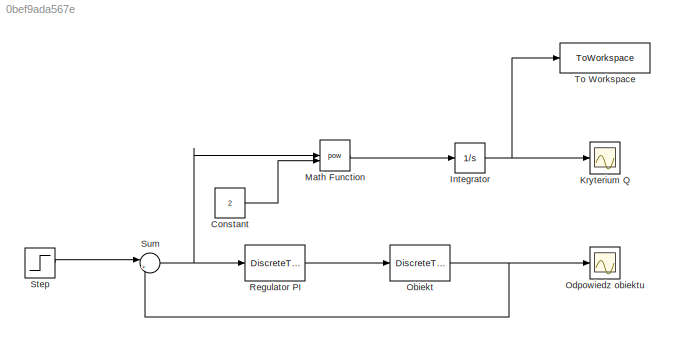
MODEL slx_0bef9ada567e
KIND model
CONFIG AbsTol = auto
CONFIG EnableMultiTasking = off
CONFIG FixedStep = 0.001
CONFIG MaxStep = auto
CONFIG MinStep = auto
CONFIG RelTol = 1e-3
CONFIG SampleTimeConstraint = Unconstrained
CONFIG SolverName = FixedStepAuto
CONFIG StartTime = 0.0
CONFIG StopTime = 200
BLOCK [Constant] Constant
  Value = 2
BLOCK [Integrator] Integrator
BLOCK [Scope] Kryterium Q
  Floating = off
  NumInputPorts = 1
  ScopeSpecificationString = Simulink.scopes.TimeScopeBlockCfg('CurrentConfiguration', extmgr.ConfigurationSet(extmgr.Configuration('Core','General UI',true),extmgr.Configuration('Core','Source UI',true),extmgr.Configuration('Sources','WiredSimulink',true,'DataLoggingVariableName','ScopeData1'),extmgr.Configuration('Visuals','Time Domain',true,'SerializedDisplays',{struct('MinYLimReal','-0.53527','MaxYLimReal','4.81745','YLab...<+1698ch>
BLOCK [Math] Math Function
  Operator = pow
BLOCK [DiscreteTransferFcn] Obiekt
  Denominator = disc_model.Denominator{1,1}
  InputPortMap = u0
  Numerator = disc_model.Numerator{1,1}
  SampleTime = Ts
BLOCK [Scope] Odpowiedz obiektu
  Floating = off
  NumInputPorts = 1
  ScopeSpecificationString = Simulink.scopes.TimeScopeBlockCfg('CurrentConfiguration', extmgr.ConfigurationSet(extmgr.Configuration('Core','General UI',true),extmgr.Configuration('Core','Source UI',true),extmgr.Configuration('Sources','WiredSimulink',true),extmgr.Configuration('Visuals','Time Domain',true,'SerializedDisplays',{struct('MinYLimReal','-0.12498','MaxYLimReal','1.12485','YLabelReal','','MinYLimMag','0.00000','MaxY...<+1355ch>
BLOCK [DiscreteTransferFcn] Regulator PI
  Denominator = pi_disc_model.Denominator{1,1}
  InputPortMap = u0
  Numerator = pi_disc_model.Numerator{1,1}
  SampleTime = Ts2
BLOCK [Step] Step
  After = final_value
  Before = init_value
  SampleTime = 0
  Time = time_step
BLOCK [Sum] Sum
  Inputs = |+-
BLOCK [ToWorkspace] To Workspace
  FixptAsFi = on
  MaxDataPoints = inf
  SampleTime = -1
  SaveFormat = Timeseries
  VariableName = q
LINE Constant:1 -> Math Function:2
NET Integrator:1 -> Kryterium Q:1, To Workspace:1
LINE Math Function:1 -> Integrator:1
NET Obiekt:1 -> Odpowiedz obiektu:1, Sum:2
LINE Regulator PI:1 -> Obiekt:1
LINE Step:1 -> Sum:1
NET Sum:1 -> Math Function:1, Regulator PI:1
note: NET lines group one-source signal fan-out (src -> all destinations, sorted); 1:1 wires keep LINE
